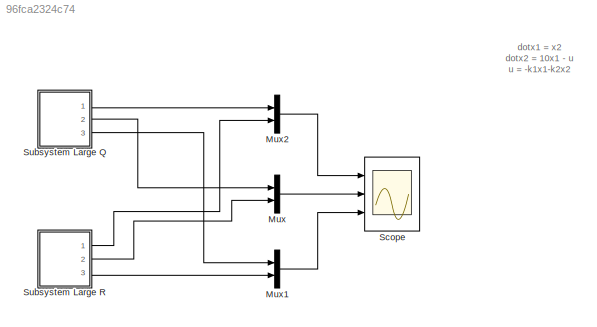
MODEL slx_96fca2324c74
KIND model
CONFIG AbsTol = auto
CONFIG EnableMultiTasking = off
CONFIG FixedStep = auto
CONFIG MaxStep = auto
CONFIG MinStep = auto
CONFIG RelTol = 1e-3
CONFIG SampleTimeConstraint = Unconstrained
CONFIG SolverName = VariableStepAuto
CONFIG StartTime = 0.0
CONFIG StopTime = 10.0
BLOCK [Mux] Mux
  DisplayOption = bar
  Inputs = 2
  Ports = [2, 1]
BLOCK [Mux] Mux1
  DisplayOption = bar
  Inputs = 2
  Ports = [2, 1]
BLOCK [Mux] Mux2
  DisplayOption = bar
  Inputs = 2
  Ports = [2, 1]
BLOCK [Scope] Scope
  Floating = off
  NumInputPorts = 3
  Ports = [3]
  ScopeSpecificationString = Simulink.scopes.TimeScopeBlockCfg('CurrentConfiguration', extmgr.ConfigurationSet(extmgr.Configuration('Core','General UI',true),extmgr.Configuration('Core','Source UI',true),extmgr.Configuration('Sources','WiredSimulink',true),extmgr.Configuration('Visuals','Time Domain',true,'SerializedDisplays',{struct('MinYLimReal','-0.63379','MaxYLimReal','5.62598','YLabelReal','','MinYLimMag','0.00000','MaxY...<+2887ch>
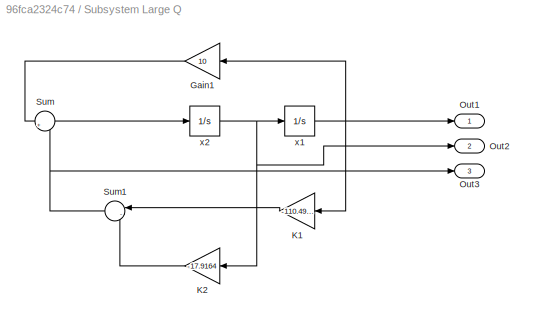
BLOCK [SubSystem] Subsystem Large Q
  Ports = [0, 3]
  RequestExecContextInheritance = off
BLOCK [Gain] Subsystem Large Q/Gain1
  Gain = 10
  NameLocation = top
BLOCK [Gain] Subsystem Large Q/K1
  Gain = -110.4988
  NameLocation = top
BLOCK [Gain] Subsystem Large Q/K2
  Gain = -17.9164
  NameLocation = top
BLOCK [Outport] Subsystem Large Q/Out1
BLOCK [Outport] Subsystem Large Q/Out2
  Port = 2
BLOCK [Outport] Subsystem Large Q/Out3
  Port = 3
BLOCK [Sum] Subsystem Large Q/Sum
  Inputs = |+-
  Ports = [2, 1]
BLOCK [Sum] Subsystem Large Q/Sum1
  Inputs = |--
  NameLocation = top
  Ports = [2, 1]
BLOCK [Integrator] Subsystem Large Q/x1
  InitialCondition = 5
  Ports = [1, 1]
BLOCK [Integrator] Subsystem Large Q/x2
  Ports = [1, 1]
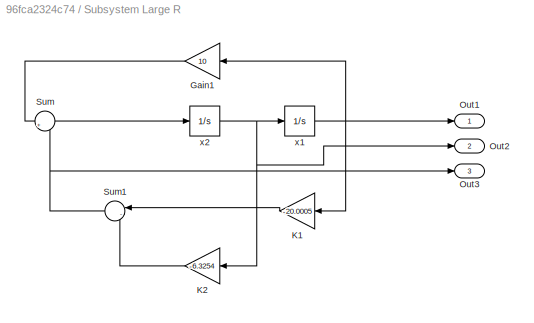
BLOCK [SubSystem] Subsystem Large R
  Ports = [0, 3]
  RequestExecContextInheritance = off
BLOCK [Gain] Subsystem Large R/Gain1
  Gain = 10
  NameLocation = top
BLOCK [Gain] Subsystem Large R/K1
  Gain = -20.0005
  NameLocation = top
BLOCK [Gain] Subsystem Large R/K2
  Gain = -6.3254
  NameLocation = top
BLOCK [Outport] Subsystem Large R/Out1
BLOCK [Outport] Subsystem Large R/Out2
  Port = 2
BLOCK [Outport] Subsystem Large R/Out3
  Port = 3
BLOCK [Sum] Subsystem Large R/Sum
  Inputs = |+-
  Ports = [2, 1]
BLOCK [Sum] Subsystem Large R/Sum1
  Inputs = |--
  NameLocation = top
  Ports = [2, 1]
BLOCK [Integrator] Subsystem Large R/x1
  InitialCondition = 5
  Ports = [1, 1]
BLOCK [Integrator] Subsystem Large R/x2
  Ports = [1, 1]
ANNOTATION (root): dotx1 = x2 dotx2 = 10x1 - u u = -k1x1-k2x2
LINE Mux1:1 -> Scope:3
LINE Mux2:1 -> Scope:1
LINE Mux:1 -> Scope:2
LINE Subsystem Large Q/Gain1:1 -> Subsystem Large Q/Sum:1
LINE Subsystem Large Q/K1:1 -> Subsystem Large Q/Sum1:1
LINE Subsystem Large Q/K2:1 -> Subsystem Large Q/Sum1:2
NET Subsystem Large Q/Sum1:1 -> Subsystem Large Q/Out3:1, Subsystem Large Q/Sum:2
LINE Subsystem Large Q/Sum:1 -> Subsystem Large Q/x2:1
NET Subsystem Large Q/x1:1 -> Subsystem Large Q/Gain1:1, Subsystem Large Q/K1:1, Subsystem Large Q/Out1:1
NET Subsystem Large Q/x2:1 -> Subsystem Large Q/K2:1, Subsystem Large Q/Out2:1, Subsystem Large Q/x1:1
LINE Subsystem Large Q:1 -> Mux2:1
LINE Subsystem Large Q:2 -> Mux:1
LINE Subsystem Large Q:3 -> Mux1:1
LINE Subsystem Large R/Gain1:1 -> Subsystem Large R/Sum:1
LINE Subsystem Large R/K1:1 -> Subsystem Large R/Sum1:1
LINE Subsystem Large R/K2:1 -> Subsystem Large R/Sum1:2
NET Subsystem Large R/Sum1:1 -> Subsystem Large R/Out3:1, Subsystem Large R/Sum:2
LINE Subsystem Large R/Sum:1 -> Subsystem Large R/x2:1
NET Subsystem Large R/x1:1 -> Subsystem Large R/Gain1:1, Subsystem Large R/K1:1, Subsystem Large R/Out1:1
NET Subsystem Large R/x2:1 -> Subsystem Large R/K2:1, Subsystem Large R/Out2:1, Subsystem Large R/x1:1
LINE Subsystem Large R:1 -> Mux2:2
LINE Subsystem Large R:2 -> Mux:2
LINE Subsystem Large R:3 -> Mux1:2
note: NET lines group one-source signal fan-out (src -> all destinations, sorted); 1:1 wires keep LINE
